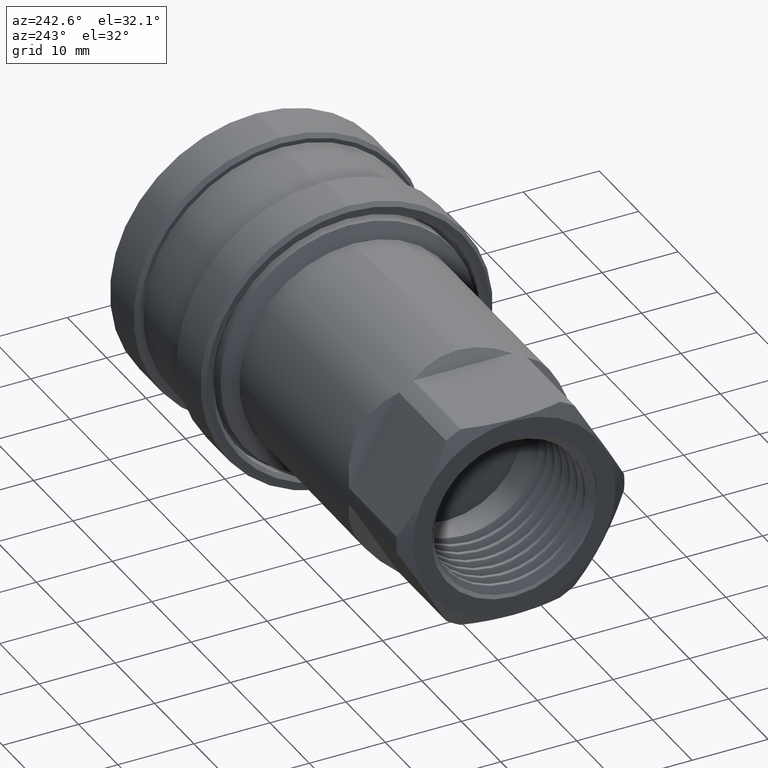
[diagram: clean part render]
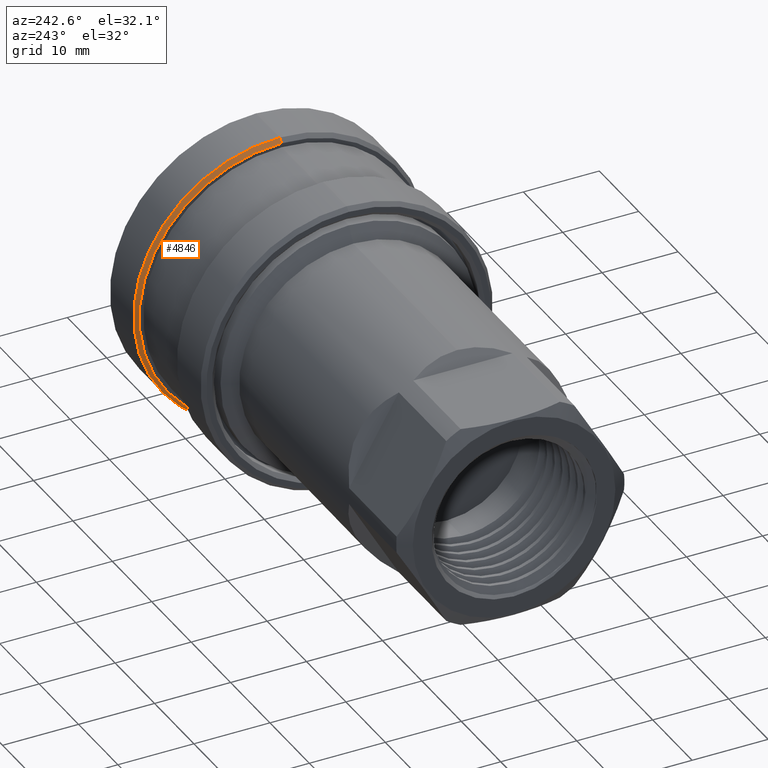
[diagram: same view with one face highlighted and labeled with its STEP entity id]
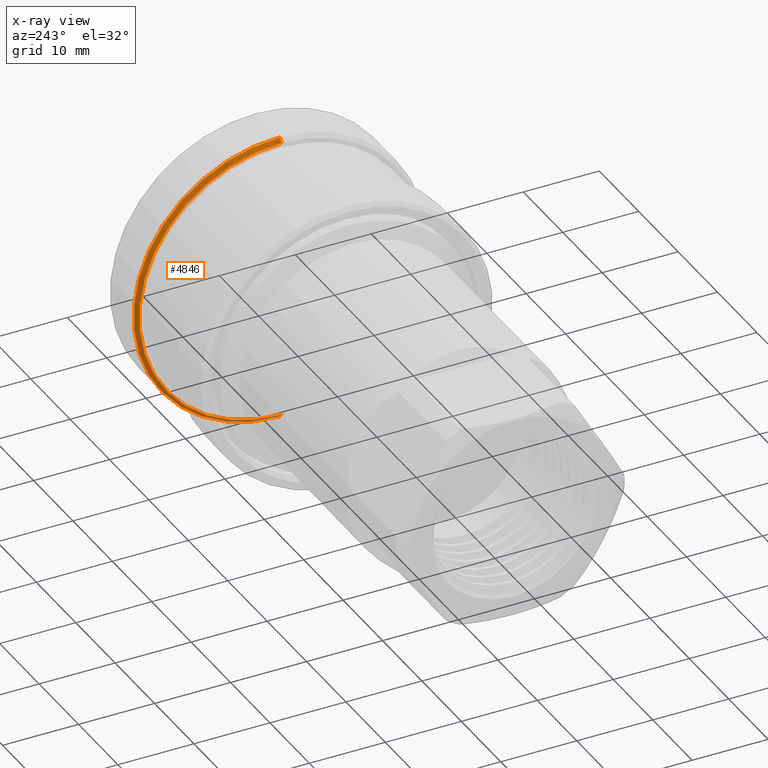
[diagram: x-ray of the same camera — body ghosted, the highlighted face saturated]
A machine part, auxiliary view. The second image highlights one B-rep face of the part: STEP entity #4846.
The next image is the same camera in x-ray: the body ghosted, the highlighted face saturated — about 9% of this face is hidden behind the body in this view.
In plain terms, the highlighted conical surface has half-angle 45 deg.
Its self-contained STEP definition (entity closure, byte-faithful):
#139 = ORIENTED_EDGE ( 'NONE', *, *, #2594, .T. ) ;
#415 = LINE ( 'NONE', #3909, #1436 ) ;
#630 = VERTEX_POINT ( 'NONE', #2520 ) ;
#717 = EDGE_CURVE ( 'NONE', #2702, #3186, #415, .T. ) ;
#795 = DIRECTION ( 'NONE',  ( 0.000000000000000000, 0.000000000000000000, -1.000000000000000000 ) ) ;
#805 = LINE ( 'NONE', #3373, #2065 ) ;
#825 = DIRECTION ( 'NONE',  ( 1.000000000000000000, -3.733948038163713664E-16, 1.743219798561495170E-15 ) ) ;
#1090 = DIRECTION ( 'NONE',  ( -1.000000000000000000, 3.733948038163713664E-16, -1.743219798561495170E-15 ) ) ;
#1436 = VECTOR ( 'NONE', #1749, 1000.000000000000000 ) ;
#1684 = ORIENTED_EDGE ( 'NONE', *, *, #717, .F. ) ;
#1699 = CIRCLE ( 'NONE', #4688, 18.72698167500173128 ) ;
#1715 = ORIENTED_EDGE ( 'NONE', *, *, #4080, .F. ) ;
#1749 = DIRECTION ( 'NONE',  ( 0.7071067811865479058, -9.607585263793040894E-16, -0.7071067811865472397 ) ) ;
#1897 = AXIS2_PLACEMENT_3D ( 'NONE', #5116, #825, #795 ) ;
#2065 = VECTOR ( 'NONE', #2535, 999.9999999999998863 ) ;
#2474 = CARTESIAN_POINT ( 'NONE',  ( 201866.9763805929106, 201918.9340169888164, 18.72698167550130677 ) ) ;
#2520 = CARTESIAN_POINT ( 'NONE',  ( 201867.4763805929106, 201918.9340169888164, 19.22698167548949044 ) ) ;
#2524 = DIRECTION ( 'NONE',  ( 0.000000000000000000, 0.000000000000000000, 1.000000000000000000 ) ) ;
#2527 = CIRCLE ( 'NONE', #3332, 19.22698167498993271 ) ;
#2535 = DIRECTION ( 'NONE',  ( 0.7071067811865479058, 5.192941363260969230E-16, 0.7071067811865471286 ) ) ;
#2572 = ORIENTED_EDGE ( 'NONE', *, *, #4792, .T. ) ;
#2594 = EDGE_CURVE ( 'NONE', #2652, #630, #805, .T. ) ;
#2652 = VERTEX_POINT ( 'NONE', #2474 ) ;
#2702 = VERTEX_POINT ( 'NONE', #3770 ) ;
#2719 = EDGE_LOOP ( 'NONE', ( #1715, #139, #2572, #1684 ) ) ;
#2809 = CONICAL_SURFACE ( 'NONE', #1897, 19.22698167498993271, 0.7853981633974482790 ) ;
#3060 = FACE_OUTER_BOUND ( 'NONE', #2719, .T. ) ;
#3186 = VERTEX_POINT ( 'NONE', #3778 ) ;
#3286 = DIRECTION ( 'NONE',  ( 0.000000000000000000, 0.000000000000000000, 1.000000000000000000 ) ) ;
#3332 = AXIS2_PLACEMENT_3D ( 'NONE', #3737, #1090, #3286 ) ;
#3373 = CARTESIAN_POINT ( 'NONE',  ( 201867.4763805929106, 201918.9340169888164, 19.22698167548949044 ) ) ;
#3737 = CARTESIAN_POINT ( 'NONE',  ( 201867.4763805929106, 201918.9340169888164, 4.995574991277913030E-10 ) ) ;
#3770 = CARTESIAN_POINT ( 'NONE',  ( 201866.9763805929106, 201918.9340169888164, -18.72698167450219131 ) ) ;
#3778 = CARTESIAN_POINT ( 'NONE',  ( 201867.4763805929106, 201918.9340169888164, -19.22698167449039275 ) ) ;
#3909 = CARTESIAN_POINT ( 'NONE',  ( 201867.4763805929106, 201918.9340169888164, -19.22698167449037498 ) ) ;
#4080 = EDGE_CURVE ( 'NONE', #2652, #2702, #1699, .T. ) ;
#4366 = CARTESIAN_POINT ( 'NONE',  ( 201866.9763805929106, 201918.9340169888164, 4.995592221149215547E-10 ) ) ;
#4688 = AXIS2_PLACEMENT_3D ( 'NONE', #4366, #4701, #2524 ) ;
#4701 = DIRECTION ( 'NONE',  ( -1.000000000000000000, 3.733948038163713664E-16, -1.743219798561495170E-15 ) ) ;
#4792 = EDGE_CURVE ( 'NONE', #630, #3186, #2527, .T. ) ;
#4846 = ADVANCED_FACE ( 'NONE', ( #3060 ), #2809, .T. ) ;
#5116 = CARTESIAN_POINT ( 'NONE',  ( 201867.4763805929106, 201918.9340169888164, 4.995574991277913030E-10 ) ) ;